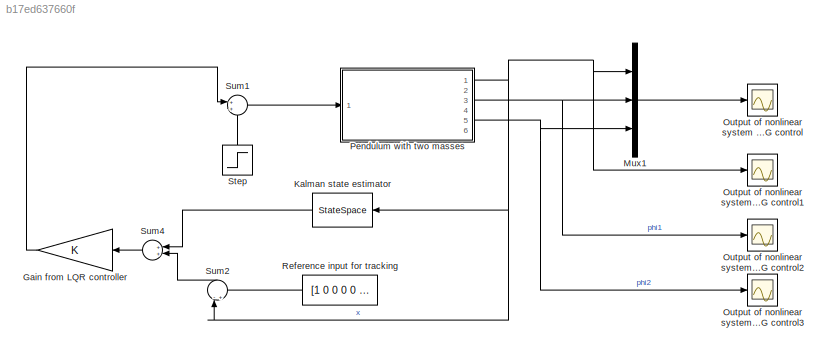
MODEL slx_b17ed637660f
KIND model
CONFIG AbsTol = auto
CONFIG EnableMultiTasking = off
CONFIG FixedStep = auto
CONFIG MaxStep = auto
CONFIG MinStep = auto
CONFIG RelTol = 1e-3
CONFIG SampleTimeConstraint = Unconstrained
CONFIG Solver = VariableStepAuto
CONFIG SolverName = VariableStepAuto
CONFIG StartTime = 0.0
CONFIG StopTime = 500
BLOCK [Gain] Gain from LQR controller
  Gain = K
  Multiplication = Matrix(K*u) (u vector)
  OutDataTypeStr = Inherit: Inherit via internal rule
  ParamDataTypeStr = Inherit: Inherit via internal rule
  SaturateOnIntegerOverflow = off
BLOCK [StateSpace] Kalman state estimator
  A = kalman_est.A
  B = kalman_est.B
  C = kalman_est.C(2:7,:)
  D = kalman_est.D(2:7)
  Ports = [1, 1]
  X0 = 0
BLOCK [Mux] Mux1
  Inputs = 3
  Ports = [3, 1]
BLOCK [Scope] Output of nonlinear system with LQG control
  NumInputPorts = 1
  Ports = [1]
  ScopeSpecificationString = Simulink.scopes.TimeScopeBlockCfg('CurrentConfiguration', extmgr.ConfigurationSet(extmgr.Configuration('Core','General UI',true,'FigureColor',[0.156862745098039 0.156862745098039 0.156862745098039]),extmgr.Configuration('Core','Source UI',true),extmgr.Configuration('Sources','WiredSimulink',true,'DataLoggingSaveFormat','StructureWithTime','DataLoggingDecimation','1','DataLoggingDecimateData',true,...<+2795ch>
BLOCK [Scope] Output of nonlinear system with LQG control1
  NumInputPorts = 1
  Ports = [1]
  ScopeSpecificationString = Simulink.scopes.TimeScopeBlockCfg('CurrentConfiguration', extmgr.ConfigurationSet(extmgr.Configuration('Core','General UI',true,'FigureColor',[0.156862745098039 0.156862745098039 0.156862745098039]),extmgr.Configuration('Core','Source UI',true),extmgr.Configuration('Sources','WiredSimulink',true,'DataLoggingSaveFormat','StructureWithTime','DataLoggingDecimation','1','DataLoggingDecimateData',true,...<+2767ch>
BLOCK [Scope] Output of nonlinear system with LQG control2
  NumInputPorts = 1
  Ports = [1]
  ScopeSpecificationString = Simulink.scopes.TimeScopeBlockCfg('CurrentConfiguration', extmgr.ConfigurationSet(extmgr.Configuration('Core','General UI',true,'FigureColor',[0.156862745098039 0.156862745098039 0.156862745098039]),extmgr.Configuration('Core','Source UI',true),extmgr.Configuration('Sources','WiredSimulink',true,'DataLoggingSaveFormat','StructureWithTime','DataLoggingDecimation','1','DataLoggingDecimateData',true,...<+2772ch>
BLOCK [Scope] Output of nonlinear system with LQG control3
  NumInputPorts = 1
  Ports = [1]
  ScopeSpecificationString = Simulink.scopes.TimeScopeBlockCfg('CurrentConfiguration', extmgr.ConfigurationSet(extmgr.Configuration('Core','General UI',true,'FigureColor',[0.156862745098039 0.156862745098039 0.156862745098039]),extmgr.Configuration('Core','Source UI',true),extmgr.Configuration('Sources','WiredSimulink',true,'DataLoggingSaveFormat','StructureWithTime','DataLoggingDecimation','1','DataLoggingDecimateData',true)...<+2733ch>
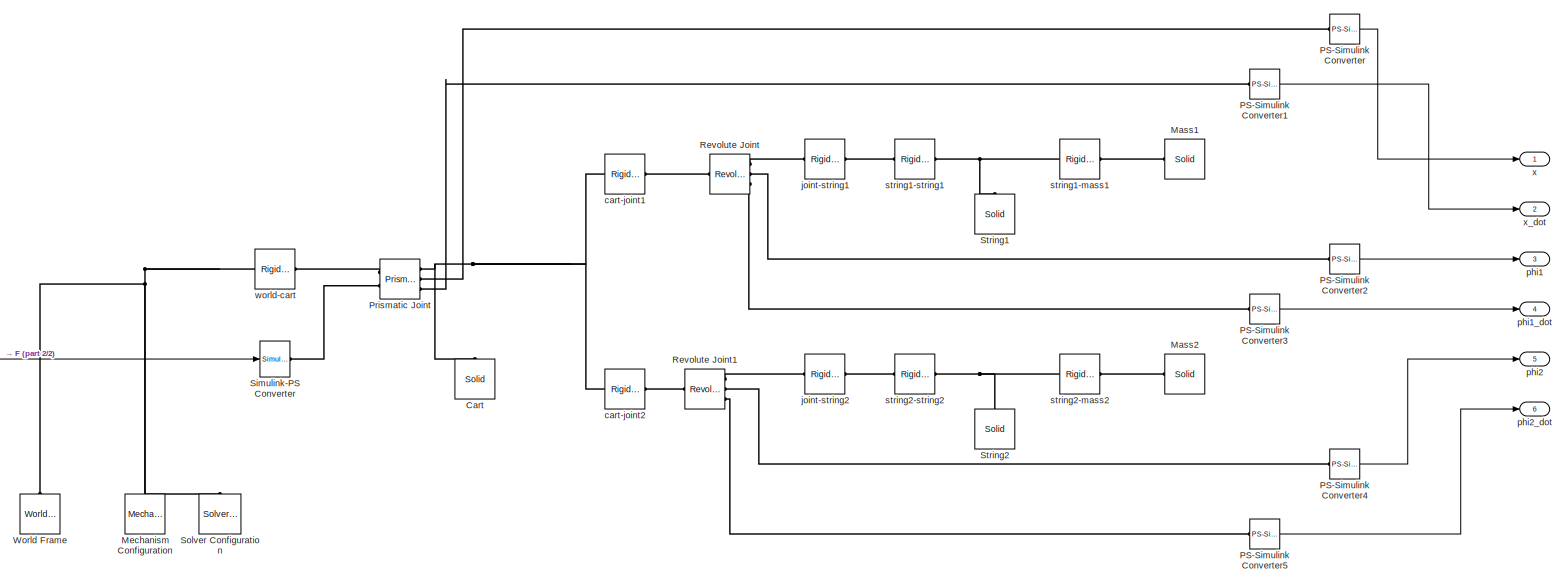
[diagram: Pendulum with two masses - part 1/2, most of the canvas]
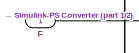
[diagram: Pendulum with two masses - part 2/2, middle left region]
BLOCK [SubSystem] Pendulum with two masses
  Ports = [1, 6]
  RequestExecContextInheritance = off
  Variant = off
BLOCK [Reference] Pendulum with two masses/Cart  REF=sm_lib/Body Elements/Solid
  Ports = [0, 0, 0, 0, 0, 0, 1]
  SourceBlock = sm_lib/Body Elements/Solid
  SourceProductBaseCode = MS
  SourceProductName = Simscape Multibody
  SourceType = Solid
BLOCK [Inport] Pendulum with two masses/F
  IconDisplay = Port number
BLOCK [Reference] Pendulum with two masses/Mass1  REF=sm_lib/Body Elements/Solid
  Ports = [0, 0, 0, 0, 0, 0, 1]
  SourceBlock = sm_lib/Body Elements/Solid
  SourceProductBaseCode = MS
  SourceProductName = Simscape Multibody
  SourceType = Solid
BLOCK [Reference] Pendulum with two masses/Mass2  REF=sm_lib/Body Elements/Solid
  Ports = [0, 0, 0, 0, 0, 0, 1]
  SourceBlock = sm_lib/Body Elements/Solid
  SourceProductBaseCode = MS
  SourceProductName = Simscape Multibody
  SourceType = Solid
BLOCK [Reference] Pendulum with two masses/Mechanism Configuration  REF=sm_lib/Utilities/Mechanism
Configuration
  Ports = [0, 0, 0, 0, 0, 0, 1]
  SourceBlock = sm_lib/Utilities/Mechanism\nConfiguration
  SourceProductBaseCode = MS
  SourceProductName = Simscape Multibody
  SourceType = Mechanism\nConfiguration
BLOCK [Reference] Pendulum with two masses/PS-Simulink Converter  REF=nesl_utility/PS-Simulink
Converter
  Ports = [0, 1, 0, 0, 0, 1]
  SourceBlock = nesl_utility/PS-Simulink\nConverter
  SourceProductBaseCode = SS
  SourceProductName = Simscape
  SourceType = PS-Simulink\nConverter
BLOCK [Reference] Pendulum with two masses/PS-Simulink Converter1  REF=nesl_utility/PS-Simulink
Converter
  Ports = [0, 1, 0, 0, 0, 1]
  SourceBlock = nesl_utility/PS-Simulink\nConverter
  SourceProductBaseCode = SS
  SourceProductName = Simscape
  SourceType = PS-Simulink\nConverter
BLOCK [Reference] Pendulum with two masses/PS-Simulink Converter2  REF=nesl_utility/PS-Simulink
Converter
  Ports = [0, 1, 0, 0, 0, 1]
  SourceBlock = nesl_utility/PS-Simulink\nConverter
  SourceProductBaseCode = SS
  SourceProductName = Simscape
  SourceType = PS-Simulink\nConverter
BLOCK [Reference] Pendulum with two masses/PS-Simulink Converter3  REF=nesl_utility/PS-Simulink
Converter
  Ports = [0, 1, 0, 0, 0, 1]
  SourceBlock = nesl_utility/PS-Simulink\nConverter
  SourceProductBaseCode = SS
  SourceProductName = Simscape
  SourceType = PS-Simulink\nConverter
BLOCK [Reference] Pendulum with two masses/PS-Simulink Converter4  REF=nesl_utility/PS-Simulink
Converter
  Ports = [0, 1, 0, 0, 0, 1]
  SourceBlock = nesl_utility/PS-Simulink\nConverter
  SourceProductBaseCode = SS
  SourceProductName = Simscape
  SourceType = PS-Simulink\nConverter
BLOCK [Reference] Pendulum with two masses/PS-Simulink Converter5  REF=nesl_utility/PS-Simulink
Converter
  Ports = [0, 1, 0, 0, 0, 1]
  SourceBlock = nesl_utility/PS-Simulink\nConverter
  SourceProductBaseCode = SS
  SourceProductName = Simscape
  SourceType = PS-Simulink\nConverter
BLOCK [Reference] Pendulum with two masses/Prismatic Joint  REF=sm_lib/Joints/Prismatic
Joint
  Ports = [0, 0, 0, 0, 0, 2, 3]
  SourceBlock = sm_lib/Joints/Prismatic\nJoint
  SourceProductBaseCode = MS
  SourceProductName = Simscape Multibody
  SourceType = Prismatic\nJoint
BLOCK [Reference] Pendulum with two masses/Revolute Joint  REF=sm_lib/Joints/Revolute Joint
  Ports = [0, 0, 0, 0, 0, 1, 3]
  SourceBlock = sm_lib/Joints/Revolute Joint
  SourceProductBaseCode = MS
  SourceProductName = Simscape Multibody
  SourceType = Revolute Joint
BLOCK [Reference] Pendulum with two masses/Revolute Joint1  REF=sm_lib/Joints/Revolute Joint
  Ports = [0, 0, 0, 0, 0, 1, 3]
  SourceBlock = sm_lib/Joints/Revolute Joint
  SourceProductBaseCode = MS
  SourceProductName = Simscape Multibody
  SourceType = Revolute Joint
BLOCK [Reference] Pendulum with two masses/Simulink-PS Converter  REF=nesl_utility/Simulink-PS
Converter
  Ports = [1, 0, 0, 0, 0, 0, 1]
  SourceBlock = nesl_utility/Simulink-PS\nConverter
  SourceProductBaseCode = SS
  SourceProductName = Simscape
  SourceType = Simulink-PS\nConverter
BLOCK [Reference] Pendulum with two masses/Solver Configuration  REF=nesl_utility/Solver
Configuration
  Ports = [0, 0, 0, 0, 0, 0, 1]
  SourceBlock = nesl_utility/Solver\nConfiguration
  SourceProductBaseCode = SS
  SourceProductName = Simscape
  SourceType = Solver\nConfiguration
BLOCK [Reference] Pendulum with two masses/String1  REF=sm_lib/Body Elements/Solid
  Ports = [0, 0, 0, 0, 0, 0, 1]
  SourceBlock = sm_lib/Body Elements/Solid
  SourceProductBaseCode = MS
  SourceProductName = Simscape Multibody
  SourceType = Solid
BLOCK [Reference] Pendulum with two masses/String2  REF=sm_lib/Body Elements/Solid
  Ports = [0, 0, 0, 0, 0, 0, 1]
  SourceBlock = sm_lib/Body Elements/Solid
  SourceProductBaseCode = MS
  SourceProductName = Simscape Multibody
  SourceType = Solid
BLOCK [Reference] Pendulum with two masses/World Frame  REF=sm_lib/Frames and
Transforms/World Frame
  Ports = [0, 0, 0, 0, 0, 0, 1]
  SourceBlock = sm_lib/Frames and\nTransforms/World Frame
  SourceProductBaseCode = MS
  SourceProductName = Simscape Multibody
  SourceType = World Frame
BLOCK [Reference] Pendulum with two masses/cart-joint1  REF=sm_lib/Frames and
Transforms/Rigid
Transform
  Ports = [0, 0, 0, 0, 0, 1, 1]
  SourceBlock = sm_lib/Frames and\nTransforms/Rigid\nTransform
  SourceProductBaseCode = MS
  SourceProductName = Simscape Multibody
  SourceType = Rigid\nTransform
BLOCK [Reference] Pendulum with two masses/cart-joint2  REF=sm_lib/Frames and
Transforms/Rigid
Transform
  Ports = [0, 0, 0, 0, 0, 1, 1]
  SourceBlock = sm_lib/Frames and\nTransforms/Rigid\nTransform
  SourceProductBaseCode = MS
  SourceProductName = Simscape Multibody
  SourceType = Rigid\nTransform
BLOCK [Reference] Pendulum with two masses/joint-string1  REF=sm_lib/Frames and
Transforms/Rigid
Transform
  Ports = [0, 0, 0, 0, 0, 1, 1]
  SourceBlock = sm_lib/Frames and\nTransforms/Rigid\nTransform
  SourceProductBaseCode = MS
  SourceProductName = Simscape Multibody
  SourceType = Rigid\nTransform
BLOCK [Reference] Pendulum with two masses/joint-string2  REF=sm_lib/Frames and
Transforms/Rigid
Transform
  Ports = [0, 0, 0, 0, 0, 1, 1]
  SourceBlock = sm_lib/Frames and\nTransforms/Rigid\nTransform
  SourceProductBaseCode = MS
  SourceProductName = Simscape Multibody
  SourceType = Rigid\nTransform
BLOCK [Outport] Pendulum with two masses/phi1
  IconDisplay = Port number
  Port = 3
BLOCK [Outport] Pendulum with two masses/phi1_dot
  IconDisplay = Port number
  Port = 4
BLOCK [Outport] Pendulum with two masses/phi2
  IconDisplay = Port number
  Port = 5
BLOCK [Outport] Pendulum with two masses/phi2_dot
  IconDisplay = Port number
  Port = 6
BLOCK [Reference] Pendulum with two masses/string1-mass1  REF=sm_lib/Frames and
Transforms/Rigid
Transform
  Ports = [0, 0, 0, 0, 0, 1, 1]
  SourceBlock = sm_lib/Frames and\nTransforms/Rigid\nTransform
  SourceProductBaseCode = MS
  SourceProductName = Simscape Multibody
  SourceType = Rigid\nTransform
BLOCK [Reference] Pendulum with two masses/string1-string1  REF=sm_lib/Frames and
Transforms/Rigid
Transform
  Ports = [0, 0, 0, 0, 0, 1, 1]
  SourceBlock = sm_lib/Frames and\nTransforms/Rigid\nTransform
  SourceProductBaseCode = MS
  SourceProductName = Simscape Multibody
  SourceType = Rigid\nTransform
BLOCK [Reference] Pendulum with two masses/string2-mass2  REF=sm_lib/Frames and
Transforms/Rigid
Transform
  Ports = [0, 0, 0, 0, 0, 1, 1]
  SourceBlock = sm_lib/Frames and\nTransforms/Rigid\nTransform
  SourceProductBaseCode = MS
  SourceProductName = Simscape Multibody
  SourceType = Rigid\nTransform
BLOCK [Reference] Pendulum with two masses/string2-string2  REF=sm_lib/Frames and
Transforms/Rigid
Transform
  Ports = [0, 0, 0, 0, 0, 1, 1]
  SourceBlock = sm_lib/Frames and\nTransforms/Rigid\nTransform
  SourceProductBaseCode = MS
  SourceProductName = Simscape Multibody
  SourceType = Rigid\nTransform
BLOCK [Reference] Pendulum with two masses/world-cart  REF=sm_lib/Frames and
Transforms/Rigid
Transform
  Ports = [0, 0, 0, 0, 0, 1, 1]
  SourceBlock = sm_lib/Frames and\nTransforms/Rigid\nTransform
  SourceProductBaseCode = MS
  SourceProductName = Simscape Multibody
  SourceType = Rigid\nTransform
BLOCK [Outport] Pendulum with two masses/x
  IconDisplay = Port number
BLOCK [Outport] Pendulum with two masses/x_dot
  IconDisplay = Port number
  Port = 2
BLOCK [Constant] Reference input for tracking
  Value = [1 0 0 0 0 0]
  VectorParams1D = off
BLOCK [Step] Step
  SampleTime = 0
BLOCK [Sum] Sum1
  InputSameDT = off
  OutDataTypeStr = Inherit: Inherit via internal rule
  Ports = [2, 1]
  SaturateOnIntegerOverflow = off
BLOCK [Sum] Sum2
  InputSameDT = off
  Inputs = -+
  OutDataTypeStr = Inherit: Inherit via internal rule
  Ports = [2, 1]
  SaturateOnIntegerOverflow = off
BLOCK [Sum] Sum4
  InputSameDT = off
  OutDataTypeStr = Inherit: Inherit via internal rule
  Ports = [2, 1]
  SaturateOnIntegerOverflow = off
LINE Gain from LQR controller:1 -> Sum1:1
LINE Kalman state estimator:1 -> Sum4:1
LINE Mux1:1 -> Output of nonlinear system with LQG control:1
LINE Pendulum with two masses/F:1 -> Pendulum with two masses/Simulink-PS Converter:1
LINE Pendulum with two masses/PS-Simulink Converter1:1 -> Pendulum with two masses/x_dot:1
LINE Pendulum with two masses/PS-Simulink Converter2:1 -> Pendulum with two masses/phi1:1
LINE Pendulum with two masses/PS-Simulink Converter3:1 -> Pendulum with two masses/phi1_dot:1
LINE Pendulum with two masses/PS-Simulink Converter4:1 -> Pendulum with two masses/phi2:1
LINE Pendulum with two masses/PS-Simulink Converter5:1 -> Pendulum with two masses/phi2_dot:1
LINE Pendulum with two masses/PS-Simulink Converter:1 -> Pendulum with two masses/x:1
NET Pendulum with two masses:1 -> Kalman state estimator:1, Mux1:1, Output of nonlinear system with LQG control1:1, Sum2:1
NET Pendulum with two masses:3 -> Mux1:2, Output of nonlinear system with LQG control2:1
NET Pendulum with two masses:5 -> Mux1:3, Output of nonlinear system with LQG control3:1
LINE Reference input for tracking:1 -> Sum2:2
LINE Step:1 -> Sum1:2
LINE Sum1:1 -> Pendulum with two masses:1
LINE Sum2:1 -> Sum4:2
LINE Sum4:1 -> Gain from LQR controller:1
PNET net1: Pendulum with two masses/Cart:RConn1 -- Pendulum with two masses/Prismatic Joint:RConn1 -- Pendulum with two masses/cart-joint1:LConn1 -- Pendulum with two masses/cart-joint2:LConn1
PLINE Pendulum with two masses/Mass1:RConn1 -- Pendulum with two masses/string1-mass1:RConn1
PLINE Pendulum with two masses/Mass2:RConn1 -- Pendulum with two masses/string2-mass2:RConn1
PNET net2: Pendulum with two masses/Mechanism Configuration:RConn1 -- Pendulum with two masses/Solver Configuration:RConn1 -- Pendulum with two masses/World Frame:RConn1 -- Pendulum with two masses/world-cart:LConn1
PLINE Pendulum with two masses/PS-Simulink Converter1:LConn1 -- Pendulum with two masses/Prismatic Joint:RConn3
PLINE Pendulum with two masses/PS-Simulink Converter2:LConn1 -- Pendulum with two masses/Revolute Joint:RConn2
PLINE Pendulum with two masses/PS-Simulink Converter3:LConn1 -- Pendulum with two masses/Revolute Joint:RConn3
PLINE Pendulum with two masses/PS-Simulink Converter4:LConn1 -- Pendulum with two masses/Revolute Joint1:RConn2
PLINE Pendulum with two masses/PS-Simulink Converter5:LConn1 -- Pendulum with two masses/Revolute Joint1:RConn3
PLINE Pendulum with two masses/PS-Simulink Converter:LConn1 -- Pendulum with two masses/Prismatic Joint:RConn2
PLINE Pendulum with two masses/Prismatic Joint:LConn1 -- Pendulum with two masses/world-cart:RConn1
PLINE Pendulum with two masses/Prismatic Joint:LConn2 -- Pendulum with two masses/Simulink-PS Converter:RConn1
PLINE Pendulum with two masses/Revolute Joint1:LConn1 -- Pendulum with two masses/cart-joint2:RConn1
PLINE Pendulum with two masses/Revolute Joint1:RConn1 -- Pendulum with two masses/joint-string2:LConn1
PLINE Pendulum with two masses/Revolute Joint:LConn1 -- Pendulum with two masses/cart-joint1:RConn1
PLINE Pendulum with two masses/Revolute Joint:RConn1 -- Pendulum with two masses/joint-string1:LConn1
PNET net3: Pendulum with two masses/String1:RConn1 -- Pendulum with two masses/string1-mass1:LConn1 -- Pendulum with two masses/string1-string1:RConn1
PNET net4: Pendulum with two masses/String2:RConn1 -- Pendulum with two masses/string2-mass2:LConn1 -- Pendulum with two masses/string2-string2:RConn1
PLINE Pendulum with two masses/joint-string1:RConn1 -- Pendulum with two masses/string1-string1:LConn1
PLINE Pendulum with two masses/joint-string2:RConn1 -- Pendulum with two masses/string2-string2:LConn1
note: NET lines group one-source signal fan-out (src -> all destinations, sorted); 1:1 wires keep LINE; PNET lines group multi-terminal physical nets as a canonical sorted terminal list (undirected conserving connections); 2-terminal nets keep the pairwise PLINE form
